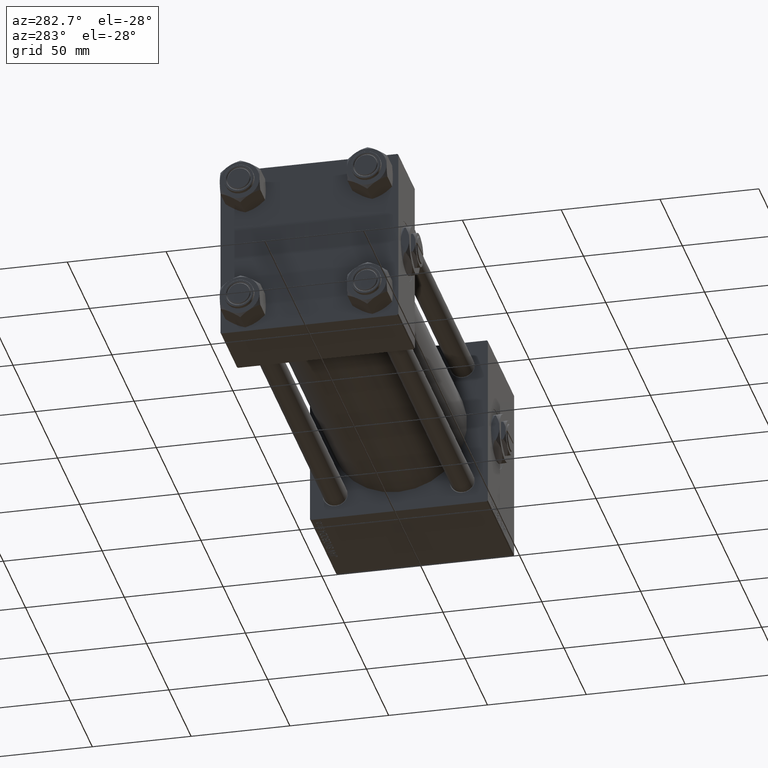
[diagram: clean part render]
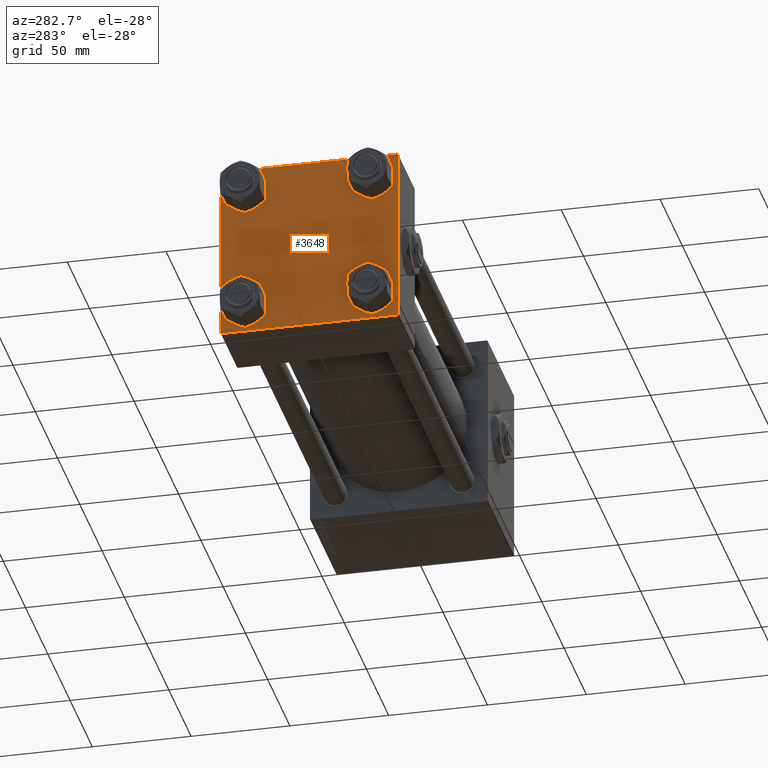
[diagram: same view with one face highlighted and labeled with its STEP entity id]
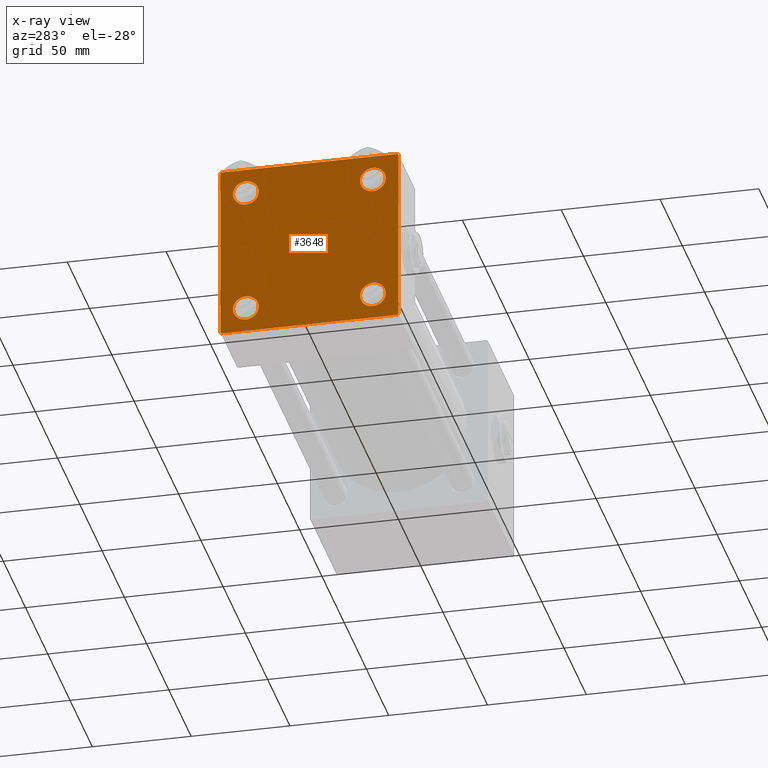
[diagram: x-ray of the same camera — body ghosted, the highlighted face saturated]
A machine part, auxiliary view. The second image highlights one B-rep face of the part: STEP entity #3648.
The next image is the same camera in x-ray: the body ghosted, the highlighted face saturated — about 0% of this face is hidden behind the body in this view.
In plain terms, the highlighted planar face has unit normal (-1, 0, 0).
Its self-contained STEP definition (entity closure, byte-faithful):
#160 = CIRCLE ( 'NONE', #30940, 6.499999999999977796 ) ;
#408 = VERTEX_POINT ( 'NONE', #40352 ) ;
#929 = AXIS2_PLACEMENT_3D ( 'NONE', #19578, #15579, #32151 ) ;
#1297 = ORIENTED_EDGE ( 'NONE', *, *, #52635, .T. ) ;
#1623 = AXIS2_PLACEMENT_3D ( 'NONE', #16545, #30156, #13832 ) ;
#1958 = LINE ( 'NONE', #38604, #33679 ) ;
#2251 = EDGE_CURVE ( 'NONE', #48482, #48505, #44149, .T. ) ;
#2304 = CIRCLE ( 'NONE', #12546, 6.499999999999977796 ) ;
#2400 = DIRECTION ( 'NONE',  ( 1.000000000000000000, -0.000000000000000000, 0.000000000000000000 ) ) ;
#2615 = VERTEX_POINT ( 'NONE', #8968 ) ;
#3648 = ADVANCED_FACE ( 'NONE', ( #12469, #28523, #28784, #16493, #44570 ), #8452, .T. ) ;
#3759 = EDGE_CURVE ( 'NONE', #408, #47178, #40163, .T. ) ;
#4747 = ORIENTED_EDGE ( 'NONE', *, *, #7018, .T. ) ;
#5513 = VERTEX_POINT ( 'NONE', #29516 ) ;
#5569 = EDGE_CURVE ( 'NONE', #47178, #48505, #1958, .T. ) ;
#5570 = DIRECTION ( 'NONE',  ( 0.000000000000000000, 0.000000000000000000, -1.000000000000000000 ) ) ;
#6156 = DIRECTION ( 'NONE',  ( 0.000000000000000000, 0.000000000000000000, 1.000000000000000000 ) ) ;
#7018 = EDGE_CURVE ( 'NONE', #20389, #43392, #16650, .T. ) ;
#7455 = DIRECTION ( 'NONE',  ( 0.000000000000000000, -1.000000000000000000, -1.541976423090495387E-16 ) ) ;
#8380 = CIRCLE ( 'NONE', #18655, 6.499999999999977796 ) ;
#8452 = PLANE ( 'NONE',  #30975 ) ;
#8482 = ORIENTED_EDGE ( 'NONE', *, *, #3759, .T. ) ;
#8603 = VECTOR ( 'NONE', #5570, 1000.000000000000000 ) ;
#8679 = CARTESIAN_POINT ( 'NONE',  ( 0.000000000000000000, -45.00000000000000711, 44.49999999999997158 ) ) ;
#8763 = VECTOR ( 'NONE', #7455, 1000.000000000000000 ) ;
#8924 = DIRECTION ( 'NONE',  ( -0.000000000000000000, -0.7071067811865474617, -0.7071067811865474617 ) ) ;
#8929 = ORIENTED_EDGE ( 'NONE', *, *, #37046, .T. ) ;
#8968 = CARTESIAN_POINT ( 'NONE',  ( 0.000000000000000000, 44.99999999999998579, -44.49999999999995737 ) ) ;
#9396 = VERTEX_POINT ( 'NONE', #16776 ) ;
#9927 = CARTESIAN_POINT ( 'NONE',  ( 0.000000000000000000, -44.49999999999995737, 45.00000000000000000 ) ) ;
#10558 = EDGE_LOOP ( 'NONE', ( #10993, #16834, #8482, #19354, #15868, #25890, #23734, #12817 ) ) ;
#10993 = ORIENTED_EDGE ( 'NONE', *, *, #46860, .T. ) ;
#11481 = LINE ( 'NONE', #14440, #44507 ) ;
#11670 = DIRECTION ( 'NONE',  ( 0.000000000000000000, 0.000000000000000000, 1.000000000000000000 ) ) ;
#11674 = CARTESIAN_POINT ( 'NONE',  ( 0.000000000000000000, 32.14999999999999147, -25.65000000000002700 ) ) ;
#12209 = CARTESIAN_POINT ( 'NONE',  ( 0.000000000000000000, 0.000000000000000000, 0.000000000000000000 ) ) ;
#12469 = FACE_BOUND ( 'NONE', #16279, .T. ) ;
#12546 = AXIS2_PLACEMENT_3D ( 'NONE', #30627, #42925, #22602 ) ;
#12817 = ORIENTED_EDGE ( 'NONE', *, *, #51039, .T. ) ;
#13755 = CIRCLE ( 'NONE', #929, 6.500000000000019540 ) ;
#13832 = DIRECTION ( 'NONE',  ( 0.000000000000000000, 0.000000000000000000, 1.000000000000000000 ) ) ;
#14440 = CARTESIAN_POINT ( 'NONE',  ( -0.000000000000000000, -44.75000000000029843, 44.74999999999967315 ) ) ;
#15062 = EDGE_CURVE ( 'NONE', #16204, #9396, #52807, .T. ) ;
#15222 = LINE ( 'NONE', #26998, #8763 ) ;
#15542 = CARTESIAN_POINT ( 'NONE',  ( 0.000000000000000000, -45.00000000000000711, 45.00000000000000000 ) ) ;
#15579 = DIRECTION ( 'NONE',  ( 1.000000000000000000, -0.000000000000000000, 0.000000000000000000 ) ) ;
#15673 = CARTESIAN_POINT ( 'NONE',  ( 0.000000000000000000, -32.14999999999997726, -32.15000000000001279 ) ) ;
#15868 = ORIENTED_EDGE ( 'NONE', *, *, #2251, .F. ) ;
#16204 = VERTEX_POINT ( 'NONE', #34666 ) ;
#16279 = EDGE_LOOP ( 'NONE', ( #39605, #18150 ) ) ;
#16493 = FACE_BOUND ( 'NONE', #45907, .T. ) ;
#16545 = CARTESIAN_POINT ( 'NONE',  ( 0.000000000000000000, 32.14999999999999147, -32.15000000000000568 ) ) ;
#16650 = CIRCLE ( 'NONE', #26916, 6.499999999999977796 ) ;
#16776 = CARTESIAN_POINT ( 'NONE',  ( 0.000000000000000000, 32.14999999999999147, 25.65000000000002700 ) ) ;
#16827 = VERTEX_POINT ( 'NONE', #9927 ) ;
#16834 = ORIENTED_EDGE ( 'NONE', *, *, #24981, .T. ) ;
#17020 = LINE ( 'NONE', #17807, #30983 ) ;
#17807 = CARTESIAN_POINT ( 'NONE',  ( 0.000000000000000000, 44.74999999999999289, 44.74999999999999289 ) ) ;
#18150 = ORIENTED_EDGE ( 'NONE', *, *, #46415, .T. ) ;
#18202 = CARTESIAN_POINT ( 'NONE',  ( 0.000000000000000000, -32.14999999999997726, -32.15000000000001279 ) ) ;
#18655 = AXIS2_PLACEMENT_3D ( 'NONE', #40030, #27995, #11670 ) ;
#19354 = ORIENTED_EDGE ( 'NONE', *, *, #5569, .T. ) ;
#19578 = CARTESIAN_POINT ( 'NONE',  ( 0.000000000000000000, -32.14999999999997726, 32.15000000000001279 ) ) ;
#20121 = EDGE_CURVE ( 'NONE', #29563, #42794, #43470, .T. ) ;
#20389 = VERTEX_POINT ( 'NONE', #50157 ) ;
#20721 = CARTESIAN_POINT ( 'NONE',  ( 0.000000000000000000, -45.00000000000000000, -44.49999999999995737 ) ) ;
#22602 = DIRECTION ( 'NONE',  ( 0.000000000000000000, 0.000000000000000000, 1.000000000000000000 ) ) ;
#22775 = CARTESIAN_POINT ( 'NONE',  ( 0.000000000000000000, 32.14999999999999147, -38.64999999999998437 ) ) ;
#23709 = VERTEX_POINT ( 'NONE', #42316 ) ;
#23734 = ORIENTED_EDGE ( 'NONE', *, *, #29065, .F. ) ;
#23821 = DIRECTION ( 'NONE',  ( 0.000000000000000000, 7.709882115452476934E-17, -1.000000000000000000 ) ) ;
#24065 = CIRCLE ( 'NONE', #41999, 6.500000000000019540 ) ;
#24107 = DIRECTION ( 'NONE',  ( 0.000000000000000000, -1.000000000000000000, -1.541976423090495633E-16 ) ) ;
#24251 = EDGE_CURVE ( 'NONE', #48482, #16827, #11481, .T. ) ;
#24769 = DIRECTION ( 'NONE',  ( -1.000000000000000000, 0.000000000000000000, -0.000000000000000000 ) ) ;
#24981 = EDGE_CURVE ( 'NONE', #2615, #408, #49854, .T. ) ;
#25243 = CARTESIAN_POINT ( 'NONE',  ( 0.000000000000000000, 44.74999999999998579, -44.74999999999998579 ) ) ;
#25639 = CARTESIAN_POINT ( 'NONE',  ( 0.000000000000000000, 44.99999999999998579, 45.00000000000001421 ) ) ;
#25774 = DIRECTION ( 'NONE',  ( 0.000000000000000000, -0.7071067811865474617, 0.7071067811865474617 ) ) ;
#25851 = VECTOR ( 'NONE', #24107, 1000.000000000000000 ) ;
#25890 = ORIENTED_EDGE ( 'NONE', *, *, #24251, .T. ) ;
#26249 = EDGE_LOOP ( 'NONE', ( #33658, #8929 ) ) ;
#26517 = VERTEX_POINT ( 'NONE', #52692 ) ;
#26598 = VECTOR ( 'NONE', #8924, 1000.000000000000114 ) ;
#26863 = CARTESIAN_POINT ( 'NONE',  ( 0.000000000000000000, -32.14999999999997726, 38.65000000000003411 ) ) ;
#26916 = AXIS2_PLACEMENT_3D ( 'NONE', #18202, #2400, #6156 ) ;
#26998 = CARTESIAN_POINT ( 'NONE',  ( 0.000000000000000000, 44.99999999999998579, 45.00000000000001421 ) ) ;
#27995 = DIRECTION ( 'NONE',  ( 1.000000000000000000, -0.000000000000000000, 0.000000000000000000 ) ) ;
#28523 = FACE_BOUND ( 'NONE', #38982, .T. ) ;
#28784 = FACE_BOUND ( 'NONE', #26249, .T. ) ;
#29065 = EDGE_CURVE ( 'NONE', #26517, #16827, #15222, .T. ) ;
#29462 = DIRECTION ( 'NONE',  ( 0.000000000000000000, 0.000000000000000000, 1.000000000000000000 ) ) ;
#29465 = ORIENTED_EDGE ( 'NONE', *, *, #33776, .T. ) ;
#29516 = CARTESIAN_POINT ( 'NONE',  ( 0.000000000000000000, -32.14999999999997726, 25.64999999999999147 ) ) ;
#29563 = VERTEX_POINT ( 'NONE', #11674 ) ;
#29723 = AXIS2_PLACEMENT_3D ( 'NONE', #38257, #50569, #47076 ) ;
#30156 = DIRECTION ( 'NONE',  ( 1.000000000000000000, -0.000000000000000000, 0.000000000000000000 ) ) ;
#30627 = CARTESIAN_POINT ( 'NONE',  ( 0.000000000000000000, 32.14999999999999147, 32.15000000000000568 ) ) ;
#30940 = AXIS2_PLACEMENT_3D ( 'NONE', #15673, #35719, #31983 ) ;
#30975 = AXIS2_PLACEMENT_3D ( 'NONE', #12209, #24769, #40555 ) ;
#30983 = VECTOR ( 'NONE', #46424, 1000.000000000000114 ) ;
#31880 = CARTESIAN_POINT ( 'NONE',  ( 0.000000000000000000, 44.99999999999998579, -44.99999999999998579 ) ) ;
#31983 = DIRECTION ( 'NONE',  ( 0.000000000000000000, 0.000000000000000000, 1.000000000000000000 ) ) ;
#32151 = DIRECTION ( 'NONE',  ( 0.000000000000000000, 0.000000000000000000, 1.000000000000000000 ) ) ;
#33658 = ORIENTED_EDGE ( 'NONE', *, *, #20121, .T. ) ;
#33679 = VECTOR ( 'NONE', #25774, 1000.000000000000114 ) ;
#33776 = EDGE_CURVE ( 'NONE', #9396, #16204, #2304, .T. ) ;
#34195 = LINE ( 'NONE', #25639, #8603 ) ;
#34666 = CARTESIAN_POINT ( 'NONE',  ( 0.000000000000000000, 32.14999999999999147, 38.64999999999999147 ) ) ;
#35719 = DIRECTION ( 'NONE',  ( 1.000000000000000000, -0.000000000000000000, 0.000000000000000000 ) ) ;
#37046 = EDGE_CURVE ( 'NONE', #42794, #29563, #8380, .T. ) ;
#37229 = CARTESIAN_POINT ( 'NONE',  ( 0.000000000000000000, -32.14999999999997726, 32.15000000000001279 ) ) ;
#38257 = CARTESIAN_POINT ( 'NONE',  ( 0.000000000000000000, 32.14999999999999147, 32.15000000000000568 ) ) ;
#38604 = CARTESIAN_POINT ( 'NONE',  ( 0.000000000000000000, -44.74999999999998579, -44.74999999999998579 ) ) ;
#38982 = EDGE_LOOP ( 'NONE', ( #1297, #4747 ) ) ;
#39605 = ORIENTED_EDGE ( 'NONE', *, *, #48889, .T. ) ;
#39928 = ORIENTED_EDGE ( 'NONE', *, *, #15062, .T. ) ;
#40030 = CARTESIAN_POINT ( 'NONE',  ( 0.000000000000000000, 32.14999999999999147, -32.15000000000000568 ) ) ;
#40163 = LINE ( 'NONE', #31880, #25851 ) ;
#40352 = CARTESIAN_POINT ( 'NONE',  ( 0.000000000000000000, 44.49999999999998579, -44.99999999999998579 ) ) ;
#40555 = DIRECTION ( 'NONE',  ( -0.000000000000000000, 0.000000000000000000, 1.000000000000000000 ) ) ;
#41107 = CARTESIAN_POINT ( 'NONE',  ( 0.000000000000000000, -44.49999999999995737, -45.00000000000000000 ) ) ;
#41999 = AXIS2_PLACEMENT_3D ( 'NONE', #37229, #49808, #29462 ) ;
#42316 = CARTESIAN_POINT ( 'NONE',  ( 0.000000000000000000, 44.99999999999998579, 44.50000000000001421 ) ) ;
#42597 = VERTEX_POINT ( 'NONE', #26863 ) ;
#42794 = VERTEX_POINT ( 'NONE', #22775 ) ;
#42925 = DIRECTION ( 'NONE',  ( 1.000000000000000000, -0.000000000000000000, 0.000000000000000000 ) ) ;
#43392 = VERTEX_POINT ( 'NONE', #45151 ) ;
#43470 = CIRCLE ( 'NONE', #1623, 6.499999999999977796 ) ;
#44149 = LINE ( 'NONE', #15542, #44503 ) ;
#44503 = VECTOR ( 'NONE', #23821, 1000.000000000000000 ) ;
#44507 = VECTOR ( 'NONE', #51613, 1000.000000000000114 ) ;
#44570 = FACE_OUTER_BOUND ( 'NONE', #10558, .T. ) ;
#45151 = CARTESIAN_POINT ( 'NONE',  ( 0.000000000000000000, -32.14999999999997726, -25.65000000000003411 ) ) ;
#45907 = EDGE_LOOP ( 'NONE', ( #39928, #29465 ) ) ;
#46415 = EDGE_CURVE ( 'NONE', #5513, #42597, #13755, .T. ) ;
#46424 = DIRECTION ( 'NONE',  ( 0.000000000000000000, 0.7071067811865474617, -0.7071067811865474617 ) ) ;
#46860 = EDGE_CURVE ( 'NONE', #23709, #2615, #34195, .T. ) ;
#47076 = DIRECTION ( 'NONE',  ( 0.000000000000000000, 0.000000000000000000, 1.000000000000000000 ) ) ;
#47178 = VERTEX_POINT ( 'NONE', #41107 ) ;
#48482 = VERTEX_POINT ( 'NONE', #8679 ) ;
#48505 = VERTEX_POINT ( 'NONE', #20721 ) ;
#48889 = EDGE_CURVE ( 'NONE', #42597, #5513, #24065, .T. ) ;
#49808 = DIRECTION ( 'NONE',  ( 1.000000000000000000, -0.000000000000000000, 0.000000000000000000 ) ) ;
#49854 = LINE ( 'NONE', #25243, #26598 ) ;
#50157 = CARTESIAN_POINT ( 'NONE',  ( 0.000000000000000000, -32.14999999999997726, -38.64999999999999147 ) ) ;
#50569 = DIRECTION ( 'NONE',  ( 1.000000000000000000, -0.000000000000000000, 0.000000000000000000 ) ) ;
#51039 = EDGE_CURVE ( 'NONE', #26517, #23709, #17020, .T. ) ;
#51613 = DIRECTION ( 'NONE',  ( -0.000000000000000000, 0.7071067811865425767, 0.7071067811865524577 ) ) ;
#52635 = EDGE_CURVE ( 'NONE', #43392, #20389, #160, .T. ) ;
#52692 = CARTESIAN_POINT ( 'NONE',  ( 0.000000000000000000, 44.49999999999998579, 45.00000000000001421 ) ) ;
#52807 = CIRCLE ( 'NONE', #29723, 6.499999999999977796 ) ;